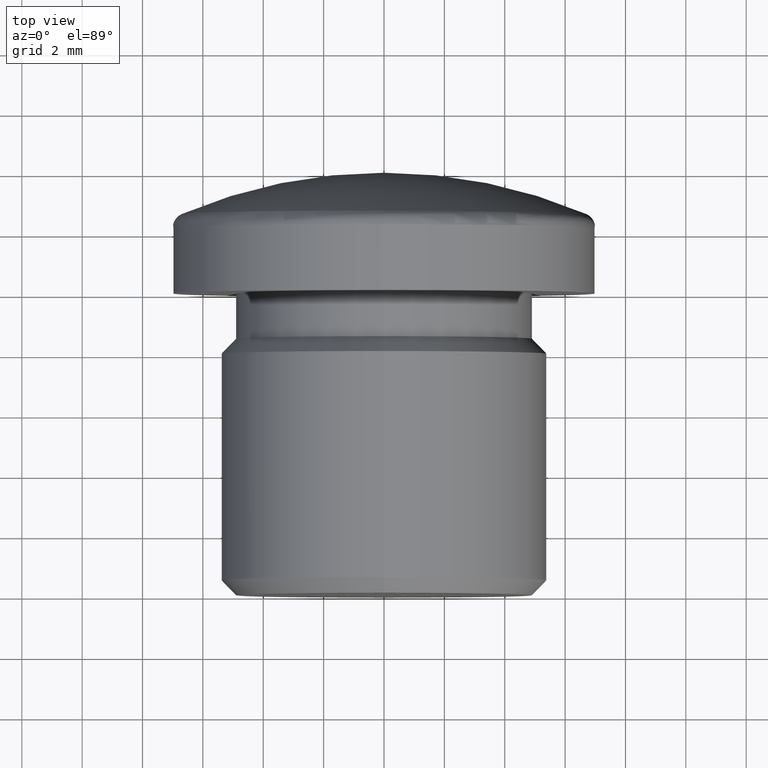
[diagram: clean part render]
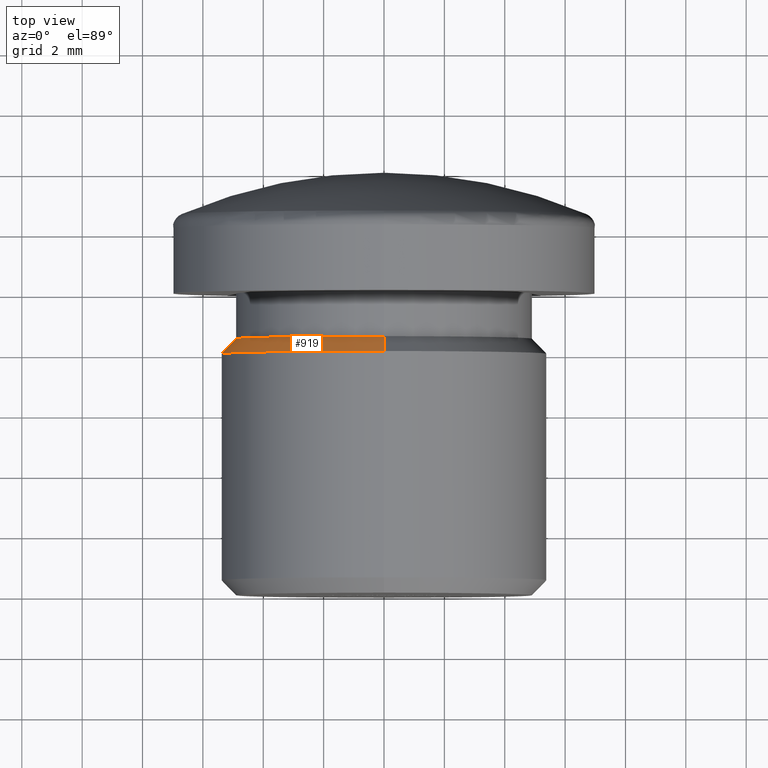
[diagram: same view with one face highlighted and labeled with its STEP entity id]
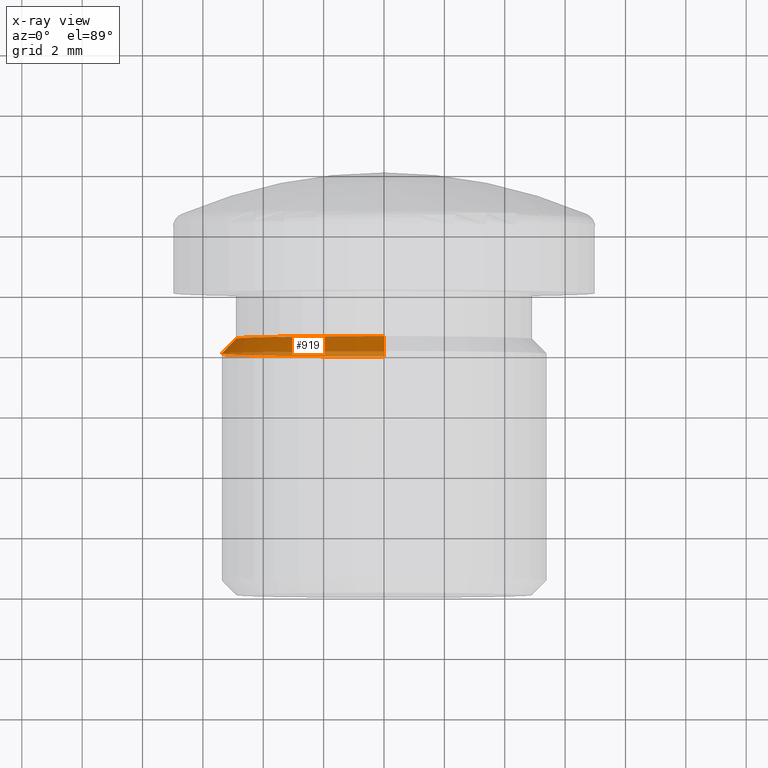
[diagram: x-ray of the same camera — body ghosted, the highlighted face saturated]
A machine part, top view. The second image highlights one B-rep face of the part: STEP entity #919.
The next image is the same camera in x-ray: the body ghosted, the highlighted face saturated — about 24% of this face is hidden behind the body in this view.
In plain terms, the highlighted conical surface has half-angle 45 deg.
Its self-contained STEP definition (entity closure, byte-faithful):
#328 = CARTESIAN_POINT ( 'NONE',  ( 0.0000000000000000000, 8.000000000000000000, -5.400000000000003900 ) ) ;
#766 = VECTOR ( 'NONE', #4750, 1000.000000000000000 ) ;
#782 = VERTEX_POINT ( 'NONE', #941 ) ;
#919 = ADVANCED_FACE ( 'NONE', ( #14006 ), #6970, .T. ) ;
#941 = CARTESIAN_POINT ( 'NONE',  ( 0.0000000000000000000, 8.499999999999998200, -4.899999999999999500 ) ) ;
#1086 = CIRCLE ( 'NONE', #5024, 4.899999999999999500 ) ;
#1351 = EDGE_CURVE ( 'NONE', #782, #1824, #1086, .T. ) ;
#1617 = EDGE_LOOP ( 'NONE', ( #12569, #13808, #3932, #7603 ) ) ;
#1824 = VERTEX_POINT ( 'NONE', #8151 ) ;
#2477 = DIRECTION ( 'NONE',  ( 0.0000000000000000000, 1.000000000000000000, 0.0000000000000000000 ) ) ;
#3677 = DIRECTION ( 'NONE',  ( 0.0000000000000000000, 0.0000000000000000000, -1.000000000000000000 ) ) ;
#3688 = CARTESIAN_POINT ( 'NONE',  ( 0.0000000000000000000, 8.499999999999998200, 0.0000000000000000000 ) ) ;
#3932 = ORIENTED_EDGE ( 'NONE', *, *, #9849, .T. ) ;
#4286 = VERTEX_POINT ( 'NONE', #7435 ) ;
#4550 = EDGE_CURVE ( 'NONE', #4286, #9732, #4939, .T. ) ;
#4696 = DIRECTION ( 'NONE',  ( -0.0000000000000000000, -1.000000000000000000, -0.0000000000000000000 ) ) ;
#4750 = DIRECTION ( 'NONE',  ( 8.659560562354978500E-017, -0.7071067811865439100, 0.7071067811865512400 ) ) ;
#4939 = CIRCLE ( 'NONE', #5111, 5.400000000000001200 ) ;
#5024 = AXIS2_PLACEMENT_3D ( 'NONE', #3688, #2477, #5950 ) ;
#5111 = AXIS2_PLACEMENT_3D ( 'NONE', #9236, #10432, #12705 ) ;
#5950 = DIRECTION ( 'NONE',  ( 0.0000000000000000000, 0.0000000000000000000, -1.000000000000000000 ) ) ;
#6752 = CARTESIAN_POINT ( 'NONE',  ( 0.0000000000000000000, 8.000000000000000000, -5.400000000000001200 ) ) ;
#6970 = CONICAL_SURFACE ( 'NONE', #12096, 5.400000000000003900, 0.7853981633974533900 ) ;
#7435 = CARTESIAN_POINT ( 'NONE',  ( 6.613092715395709400E-016, 8.000000000000000000, 5.400000000000001200 ) ) ;
#7603 = ORIENTED_EDGE ( 'NONE', *, *, #4550, .F. ) ;
#8151 = CARTESIAN_POINT ( 'NONE',  ( 6.000769315822030700E-016, 8.499999999999998200, 4.899999999999999500 ) ) ;
#8216 = LINE ( 'NONE', #9256, #766 ) ;
#8256 = DIRECTION ( 'NONE',  ( 0.0000000000000000000, -0.7071067811865439100, -0.7071067811865512400 ) ) ;
#8831 = LINE ( 'NONE', #328, #12899 ) ;
#9236 = CARTESIAN_POINT ( 'NONE',  ( 0.0000000000000000000, 8.000000000000000000, 0.0000000000000000000 ) ) ;
#9256 = CARTESIAN_POINT ( 'NONE',  ( 6.613092715395712400E-016, 8.000000000000000000, 5.400000000000003900 ) ) ;
#9732 = VERTEX_POINT ( 'NONE', #6752 ) ;
#9849 = EDGE_CURVE ( 'NONE', #782, #9732, #8831, .T. ) ;
#10210 = CARTESIAN_POINT ( 'NONE',  ( 0.0000000000000000000, 8.000000000000000000, 0.0000000000000000000 ) ) ;
#10432 = DIRECTION ( 'NONE',  ( -0.0000000000000000000, -1.000000000000000000, -0.0000000000000000000 ) ) ;
#11508 = EDGE_CURVE ( 'NONE', #1824, #4286, #8216, .T. ) ;
#12096 = AXIS2_PLACEMENT_3D ( 'NONE', #10210, #4696, #3677 ) ;
#12569 = ORIENTED_EDGE ( 'NONE', *, *, #11508, .F. ) ;
#12705 = DIRECTION ( 'NONE',  ( 0.0000000000000000000, 0.0000000000000000000, -1.000000000000000000 ) ) ;
#12899 = VECTOR ( 'NONE', #8256, 1000.000000000000000 ) ;
#13808 = ORIENTED_EDGE ( 'NONE', *, *, #1351, .F. ) ;
#14006 = FACE_OUTER_BOUND ( 'NONE', #1617, .T. ) ;